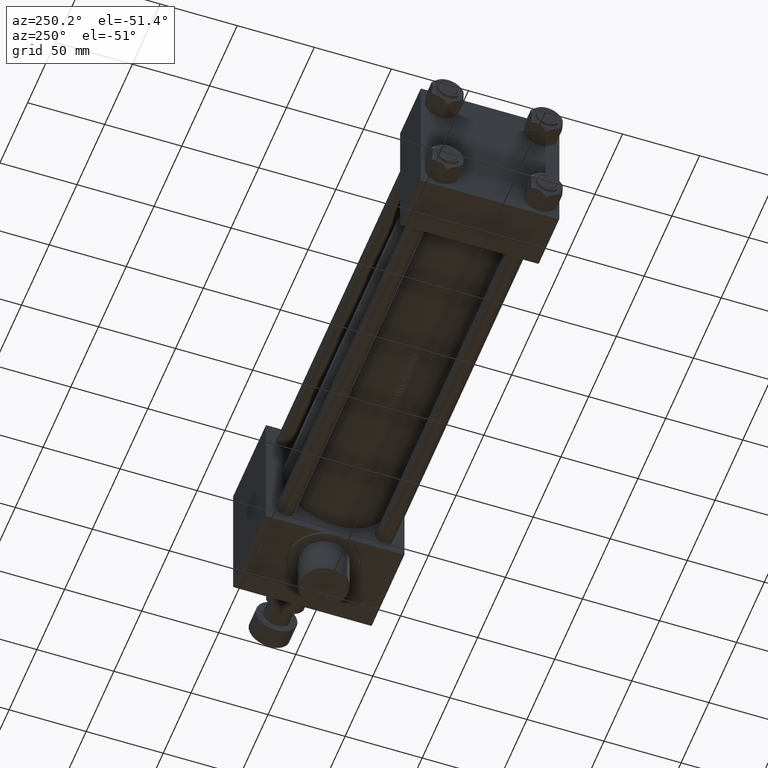
[diagram: clean part render]
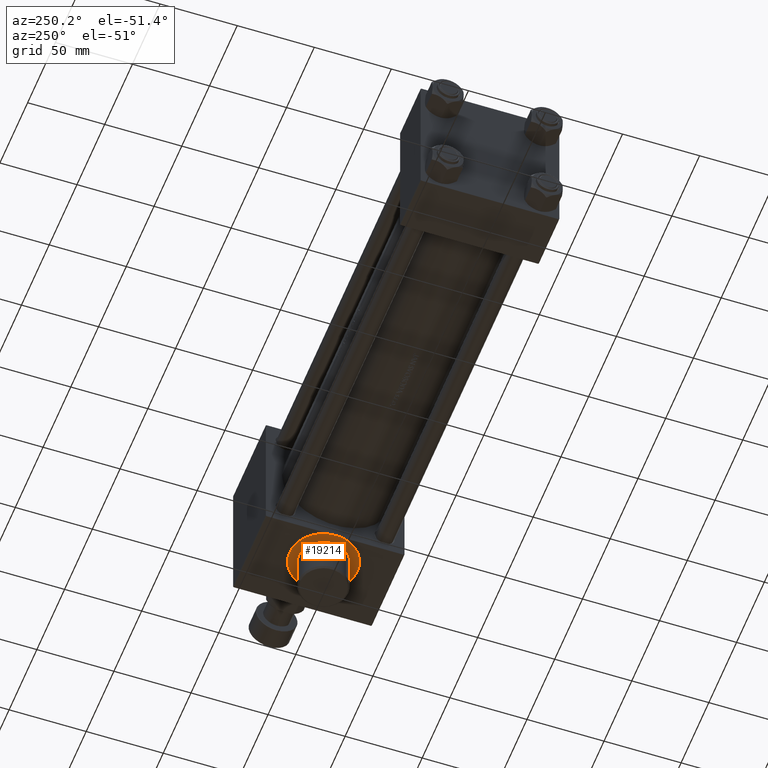
[diagram: same view with one face highlighted and labeled with its STEP entity id]
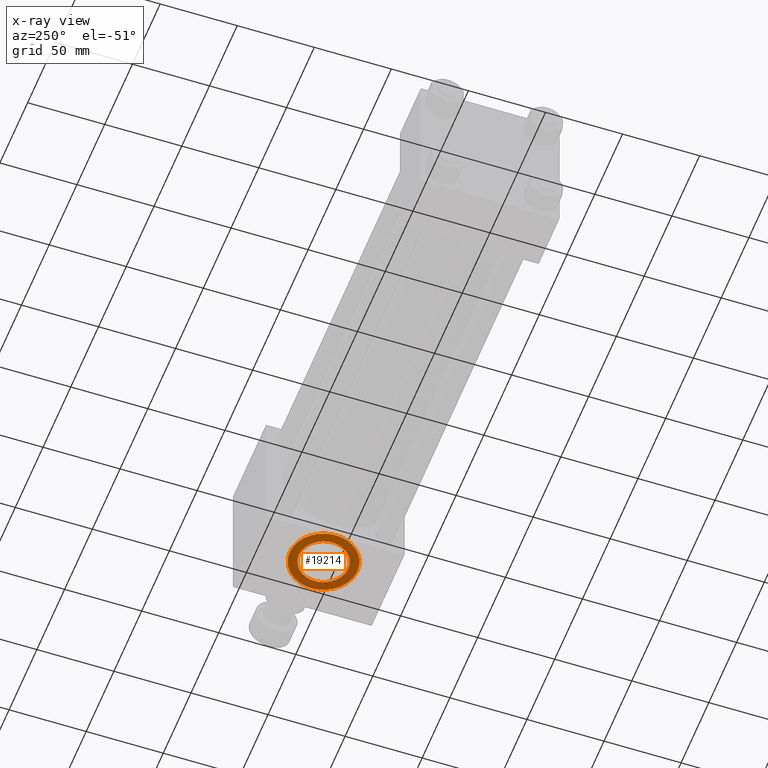
[diagram: x-ray of the same camera — body ghosted, the highlighted face saturated]
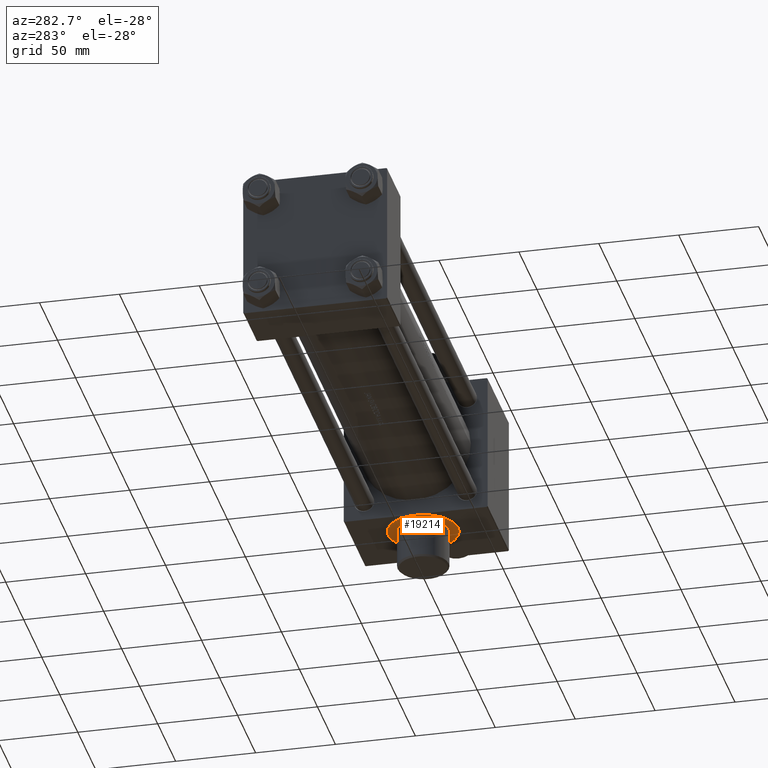
[diagram: same view with one face highlighted and labeled with its STEP entity id]
A machine part, auxiliary view. The second image highlights one B-rep face of the part: STEP entity #19214.
The next image is the same camera in x-ray: the body ghosted, the highlighted face saturated — about 0% of this face is hidden behind the body in this view.
A second angle (auxiliary view) of the same face is appended — the face is thin or edge-on in the first view.
In plain terms, the highlighted planar face has unit normal (0, -0, -1).
Its self-contained STEP definition (entity closure, byte-faithful):
#546 = ORIENTED_EDGE ( 'NONE', *, *, #16778, .T. ) ;
#641 = VERTEX_POINT ( 'NONE', #43709 ) ;
#1964 = CARTESIAN_POINT ( 'NONE',  ( 300.0000000000000000, 45.49999999999999289, -8.673617379884036705E-17 ) ) ;
#1989 = CARTESIAN_POINT ( 'NONE',  ( 300.0000000000000000, 45.49999999999999289, -8.673617379884036705E-17 ) ) ;
#3893 = AXIS2_PLACEMENT_3D ( 'NONE', #21059, #17490, #35816 ) ;
#5464 = DIRECTION ( 'NONE',  ( 0.000000000000000000, 0.000000000000000000, -1.000000000000000000 ) ) ;
#6139 = CARTESIAN_POINT ( 'NONE',  ( 300.0000000000000000, 45.49999999999999289, -16.00000000000002487 ) ) ;
#6267 = DIRECTION ( 'NONE',  ( -0.000000000000000000, -1.000000000000000000, 8.673617379884036705E-17 ) ) ;
#6813 = DIRECTION ( 'NONE',  ( -0.000000000000000000, -1.000000000000000000, 8.673617379884036705E-17 ) ) ;
#6908 = DIRECTION ( 'NONE',  ( -0.000000000000000000, -1.000000000000000000, 8.673617379884036705E-17 ) ) ;
#7872 = EDGE_CURVE ( 'NONE', #19623, #36781, #34331, .T. ) ;
#9999 = VERTEX_POINT ( 'NONE', #33673 ) ;
#11863 = CARTESIAN_POINT ( 'NONE',  ( 300.0000000000000000, 45.49999999999999289, -8.673617379884004657E-17 ) ) ;
#13217 = EDGE_LOOP ( 'NONE', ( #546, #26240 ) ) ;
#14073 = VERTEX_POINT ( 'NONE', #6139 ) ;
#14901 = ORIENTED_EDGE ( 'NONE', *, *, #26881, .F. ) ;
#15526 = CIRCLE ( 'NONE', #46670, 22.00000000000001421 ) ;
#16483 = ORIENTED_EDGE ( 'NONE', *, *, #40957, .F. ) ;
#16713 = DIRECTION ( 'NONE',  ( 0.000000000000000000, 0.000000000000000000, -1.000000000000000000 ) ) ;
#16778 = EDGE_CURVE ( 'NONE', #14073, #37037, #44865, .T. ) ;
#17181 = CARTESIAN_POINT ( 'NONE',  ( 300.0000000000000000, 45.49999999999999289, -8.673617379884036705E-17 ) ) ;
#17490 = DIRECTION ( 'NONE',  ( 0.000000000000000000, 1.000000000000000000, -8.673617379884036705E-17 ) ) ;
#17729 = PLANE ( 'NONE',  #3893 ) ;
#17764 = CARTESIAN_POINT ( 'NONE',  ( 300.0000000000000000, 45.49999999999999289, -8.673617379884036705E-17 ) ) ;
#17964 = FACE_OUTER_BOUND ( 'NONE', #40234, .T. ) ;
#19214 = ADVANCED_FACE ( 'NONE', ( #24636, #17964 ), #17729, .T. ) ;
#19623 = VERTEX_POINT ( 'NONE', #20249 ) ;
#20249 = CARTESIAN_POINT ( 'NONE',  ( 278.9999999999999432, 45.49999999999999289, 6.557438524301980820 ) ) ;
#20570 = AXIS2_PLACEMENT_3D ( 'NONE', #11863, #27063, #40886 ) ;
#20628 = DIRECTION ( 'NONE',  ( 0.000000000000000000, 0.000000000000000000, -1.000000000000000000 ) ) ;
#21059 = CARTESIAN_POINT ( 'NONE',  ( 300.0000000000000000, 45.49999999999999289, -8.673617379884036705E-17 ) ) ;
#22009 = EDGE_CURVE ( 'NONE', #9999, #19623, #26761, .T. ) ;
#22947 = AXIS2_PLACEMENT_3D ( 'NONE', #17181, #37831, #5464 ) ;
#24636 = FACE_BOUND ( 'NONE', #13217, .T. ) ;
#26240 = ORIENTED_EDGE ( 'NONE', *, *, #44096, .T. ) ;
#26761 = CIRCLE ( 'NONE', #37409, 22.00000000000001421 ) ;
#26881 = EDGE_CURVE ( 'NONE', #641, #9999, #15526, .T. ) ;
#27063 = DIRECTION ( 'NONE',  ( -0.000000000000000000, -1.000000000000000000, 8.673617379884036705E-17 ) ) ;
#27471 = AXIS2_PLACEMENT_3D ( 'NONE', #36182, #6908, #28315 ) ;
#27908 = DIRECTION ( 'NONE',  ( 0.000000000000000000, 0.000000000000000000, -1.000000000000000000 ) ) ;
#28177 = CIRCLE ( 'NONE', #20570, 16.00000000000002487 ) ;
#28315 = DIRECTION ( 'NONE',  ( 0.000000000000000000, 0.000000000000000000, -1.000000000000000000 ) ) ;
#29323 = ORIENTED_EDGE ( 'NONE', *, *, #22009, .F. ) ;
#33673 = CARTESIAN_POINT ( 'NONE',  ( 300.0000000000000000, 45.49999999999999289, 22.00000000000001421 ) ) ;
#34331 = CIRCLE ( 'NONE', #22947, 22.00000000000001421 ) ;
#35109 = CARTESIAN_POINT ( 'NONE',  ( 278.9999999999999432, 45.49999999999999289, -6.557438524301986149 ) ) ;
#35116 = ORIENTED_EDGE ( 'NONE', *, *, #7872, .F. ) ;
#35816 = DIRECTION ( 'NONE',  ( 0.000000000000000000, -8.673617379884036705E-17, -1.000000000000000000 ) ) ;
#36182 = CARTESIAN_POINT ( 'NONE',  ( 300.0000000000000000, 45.49999999999999289, -8.673617379884004657E-17 ) ) ;
#36335 = AXIS2_PLACEMENT_3D ( 'NONE', #1989, #6267, #27908 ) ;
#36781 = VERTEX_POINT ( 'NONE', #35109 ) ;
#37037 = VERTEX_POINT ( 'NONE', #41477 ) ;
#37409 = AXIS2_PLACEMENT_3D ( 'NONE', #1964, #45971, #16713 ) ;
#37831 = DIRECTION ( 'NONE',  ( -0.000000000000000000, -1.000000000000000000, 8.673617379884036705E-17 ) ) ;
#40234 = EDGE_LOOP ( 'NONE', ( #35116, #29323, #14901, #16483 ) ) ;
#40886 = DIRECTION ( 'NONE',  ( 0.000000000000000000, 0.000000000000000000, -1.000000000000000000 ) ) ;
#40957 = EDGE_CURVE ( 'NONE', #36781, #641, #46168, .T. ) ;
#41477 = CARTESIAN_POINT ( 'NONE',  ( 300.0000000000000000, 45.49999999999999289, 16.00000000000002487 ) ) ;
#43709 = CARTESIAN_POINT ( 'NONE',  ( 300.0000000000000000, 45.49999999999999289, -22.00000000000001421 ) ) ;
#44096 = EDGE_CURVE ( 'NONE', #37037, #14073, #28177, .T. ) ;
#44865 = CIRCLE ( 'NONE', #27471, 16.00000000000002487 ) ;
#45971 = DIRECTION ( 'NONE',  ( -0.000000000000000000, -1.000000000000000000, 8.673617379884036705E-17 ) ) ;
#46168 = CIRCLE ( 'NONE', #36335, 22.00000000000001421 ) ;
#46670 = AXIS2_PLACEMENT_3D ( 'NONE', #17764, #6813, #20628 ) ;